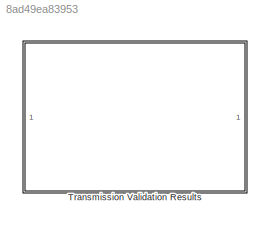
MODEL slx_8ad49ea83953
KIND library
CONFIG AbsTol = auto
CONFIG EnableMultiTasking = off
CONFIG FixedStep = auto
CONFIG MaxStep = auto
CONFIG MinStep = auto
CONFIG RelTol = 1e-3
CONFIG SampleTimeConstraint = Unconstrained
CONFIG Solver = VariableStepAuto
CONFIG SolverName = VariableStepAuto
CONFIG StartTime = 0.0
CONFIG StopTime = 10.0
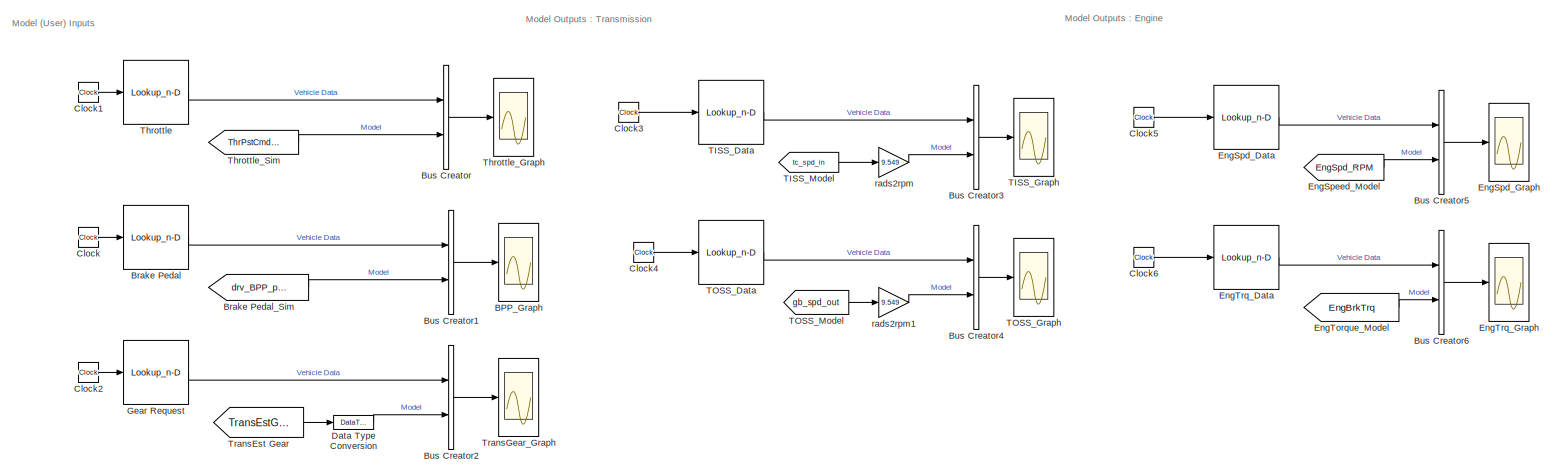
[diagram: Transmission Validation Results - part 1/2, most of the canvas]
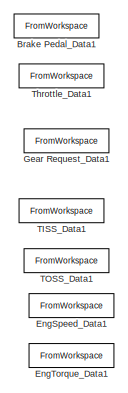
[diagram: Transmission Validation Results - part 2/2, middle left region]
BLOCK [SubSystem] Transmission Validation Results
  Ports = []
  RequestExecContextInheritance = off
  Variant = off
BLOCK [Scope] Transmission Validation Results/BPP_Graph
  NumInputPorts = 1
  Ports = [1]
  ScopeSpecificationString = Simulink.scopes.TimeScopeBlockCfg('CurrentConfiguration', extmgr.ConfigurationSet(extmgr.Configuration('Core','General UI',true),extmgr.Configuration('Core','Source UI',true),extmgr.Configuration('Sources','WiredSimulink',true,'DataLoggingVariableName','ScopeData2'),extmgr.Configuration('Visuals','Time Domain',true,'SerializedDisplays',{struct('MinYLimReal','-0.93886','MaxYLimReal','73.73362','YLa...<+1455ch>
BLOCK [Lookup_n-D] Transmission Validation Results/Brake Pedal
  BreakpointsForDimension1 = Time_Data
  InternalRulePriority = Speed
  NumberOfTableDimensions = 1
  Ports = [1, 1]
  RndMeth = Simplest
  Table = BrkPdlPos_Data
BLOCK [FromWorkspace] Transmission Validation Results/Brake Pedal_Data1
  Commented = on
  OutDataTypeStr = double
  SampleTime = 0
  VariableName = BrkPdlPos
  ZeroCross = on
BLOCK [From] Transmission Validation Results/Brake Pedal_Sim
  GotoTag = drv_BPP_percent
  TagVisibility = global
BLOCK [BusCreator] Transmission Validation Results/Bus Creator
  DisplayOption = bar
  InheritFromInputs = on
  Inputs = 2
  Ports = [2, 1]
BLOCK [BusCreator] Transmission Validation Results/Bus Creator1
  DisplayOption = bar
  InheritFromInputs = on
  Inputs = 2
  Ports = [2, 1]
BLOCK [BusCreator] Transmission Validation Results/Bus Creator2
  DisplayOption = bar
  InheritFromInputs = on
  Inputs = 2
  Ports = [2, 1]
BLOCK [BusCreator] Transmission Validation Results/Bus Creator3
  DisplayOption = bar
  InheritFromInputs = on
  Inputs = 2
  Ports = [2, 1]
BLOCK [BusCreator] Transmission Validation Results/Bus Creator4
  DisplayOption = bar
  InheritFromInputs = on
  Inputs = 2
  Ports = [2, 1]
BLOCK [BusCreator] Transmission Validation Results/Bus Creator5
  DisplayOption = bar
  InheritFromInputs = on
  Inputs = 2
  Ports = [2, 1]
BLOCK [BusCreator] Transmission Validation Results/Bus Creator6
  DisplayOption = bar
  InheritFromInputs = on
  Inputs = 2
  Ports = [2, 1]
BLOCK [Clock] Transmission Validation Results/Clock
BLOCK [Clock] Transmission Validation Results/Clock1
BLOCK [Clock] Transmission Validation Results/Clock2
BLOCK [Clock] Transmission Validation Results/Clock3
BLOCK [Clock] Transmission Validation Results/Clock4
BLOCK [Clock] Transmission Validation Results/Clock5
BLOCK [Clock] Transmission Validation Results/Clock6
BLOCK [DataTypeConversion] Transmission Validation Results/Data Type Conversion
  OutDataTypeStr = double
  RndMeth = Floor
  SaturateOnIntegerOverflow = off
BLOCK [Lookup_n-D] Transmission Validation Results/EngSpd_Data
  BreakpointsForDimension1 = Time_Data
  InternalRulePriority = Speed
  NumberOfTableDimensions = 1
  Ports = [1, 1]
  RndMeth = Simplest
  Table = EngSpd_Data
BLOCK [Scope] Transmission Validation Results/EngSpd_Graph
  NumInputPorts = 1
  Ports = [1]
  ScopeSpecificationString = Simulink.scopes.TimeScopeBlockCfg('CurrentConfiguration', extmgr.ConfigurationSet(extmgr.Configuration('Core','General UI',true),extmgr.Configuration('Core','Source UI',true),extmgr.Configuration('Sources','WiredSimulink',true,'DataLoggingVariableName','ScopeData6'),extmgr.Configuration('Visuals','Time Domain',true,'SerializedDisplays',{struct('MinYLimReal','-838.49081','MaxYLimReal','7546.41731',...<+1469ch>
BLOCK [FromWorkspace] Transmission Validation Results/EngSpeed_Data1
  Commented = on
  SampleTime = 0
  VariableName = EngSpd
  ZeroCross = on
BLOCK [From] Transmission Validation Results/EngSpeed_Model
  GotoTag = EngSpd_RPM
  TagVisibility = global
BLOCK [FromWorkspace] Transmission Validation Results/EngTorque_Data1
  Commented = on
  SampleTime = 0
  VariableName = EngActStdyStTorq
  ZeroCross = on
BLOCK [From] Transmission Validation Results/EngTorque_Model
  GotoTag = EngBrkTrq
  TagVisibility = global
BLOCK [Lookup_n-D] Transmission Validation Results/EngTrq_Data
  BreakpointsForDimension1 = Time_Data
  InternalRulePriority = Speed
  NumberOfTableDimensions = 1
  Ports = [1, 1]
  RndMeth = Simplest
  Table = EngActStdyStTorq_Da
BLOCK [Scope] Transmission Validation Results/EngTrq_Graph
  NumInputPorts = 1
  Ports = [1]
  ScopeSpecificationString = Simulink.scopes.TimeScopeBlockCfg('CurrentConfiguration', extmgr.ConfigurationSet(extmgr.Configuration('Core','General UI',true),extmgr.Configuration('Core','Source UI',true),extmgr.Configuration('Sources','WiredSimulink',true,'DataLoggingVariableName','ScopeData7'),extmgr.Configuration('Visuals','Time Domain',true,'SerializedDisplays',{struct('MinYLimReal','-70.66889','MaxYLimReal','251.75376','Y...<+1463ch>
BLOCK [Lookup_n-D] Transmission Validation Results/Gear Request
  BreakpointsForDimension1 = Time_Data
  InternalRulePriority = Speed
  NumberOfTableDimensions = 1
  Ports = [1, 1]
  RndMeth = Simplest
  Table = TransEstGear_Data
BLOCK [FromWorkspace] Transmission Validation Results/Gear Request_Data1
  Commented = on
  SampleTime = 0
  VariableName = TransEstGear
  ZeroCross = on
BLOCK [Lookup_n-D] Transmission Validation Results/TISS_Data
  BreakpointsForDimension1 = Time_Data
  InternalRulePriority = Speed
  NumberOfTableDimensions = 1
  Ports = [1, 1]
  RndMeth = Simplest
  Table = TrnTrbAngVl_Data
BLOCK [FromWorkspace] Transmission Validation Results/TISS_Data1
  Commented = on
  SampleTime = 0
  VariableName = TrnTrbAngVl_Data
  ZeroCross = on
BLOCK [Scope] Transmission Validation Results/TISS_Graph
  NumInputPorts = 1
  Ports = [1]
  ScopeSpecificationString = Simulink.scopes.TimeScopeBlockCfg('CurrentConfiguration', extmgr.ConfigurationSet(extmgr.Configuration('Core','General UI',true),extmgr.Configuration('Core','Source UI',true),extmgr.Configuration('Sources','WiredSimulink',true,'DataLoggingVariableName','ScopeData4'),extmgr.Configuration('Visuals','Time Domain',true,'SerializedDisplays',{struct('MinYLimReal','-762.80024','MaxYLimReal','6865.20214',...<+1468ch>
BLOCK [From] Transmission Validation Results/TISS_Model
  GotoTag = tc_spd_in
  TagVisibility = global
BLOCK [Lookup_n-D] Transmission Validation Results/TOSS_Data
  BreakpointsForDimension1 = Time_Data
  InternalRulePriority = Speed
  NumberOfTableDimensions = 1
  Ports = [1, 1]
  RndMeth = Simplest
  Table = TrnsOutShftAngVel_D
BLOCK [FromWorkspace] Transmission Validation Results/TOSS_Data1
  Commented = on
  SampleTime = 0
  VariableName = TrnsOutShftAngVel
  ZeroCross = on
BLOCK [Scope] Transmission Validation Results/TOSS_Graph
  NumInputPorts = 1
  Ports = [1]
  ScopeSpecificationString = Simulink.scopes.TimeScopeBlockCfg('CurrentConfiguration', extmgr.ConfigurationSet(extmgr.Configuration('Core','General UI',true),extmgr.Configuration('Core','Source UI',true),extmgr.Configuration('Sources','WiredSimulink',true,'DataLoggingVariableName','ScopeData5'),extmgr.Configuration('Visuals','Time Domain',true,'SerializedDisplays',{struct('MinYLimReal','-320.82351','MaxYLimReal','2887.41159',...<+1449ch>
BLOCK [From] Transmission Validation Results/TOSS_Model
  GotoTag = gb_spd_out
  TagVisibility = global
BLOCK [Lookup_n-D] Transmission Validation Results/Throttle
  BreakpointsForDimension1 = Time_Data
  InternalRulePriority = Speed
  NumberOfTableDimensions = 1
  Ports = [1, 1]
  RndMeth = Simplest
  Table = ThrPos_Data
BLOCK [FromWorkspace] Transmission Validation Results/Throttle_Data1
  Commented = on
  SampleTime = 0
  VariableName = ThrPos
  ZeroCross = on
BLOCK [Scope] Transmission Validation Results/Throttle_Graph
  NumInputPorts = 1
  Ports = [1]
  ScopeSpecificationString = Simulink.scopes.TimeScopeBlockCfg('CurrentConfiguration', extmgr.ConfigurationSet(extmgr.Configuration('Core','General UI',true),extmgr.Configuration('Core','Source UI',true),extmgr.Configuration('Sources','WiredSimulink',true,'DataLoggingVariableName','ScopeData1'),extmgr.Configuration('Visuals','Time Domain',true,'SerializedDisplays',{struct('MinYLimReal','-12.45098','MaxYLimReal','112.05886','Y...<+1442ch>
BLOCK [From] Transmission Validation Results/Throttle_Sim
  GotoTag = ThrPstCmd_pct
  TagVisibility = global
BLOCK [From] Transmission Validation Results/TransEst Gear
  GotoTag = TransEstGear
  TagVisibility = global
BLOCK [Scope] Transmission Validation Results/TransGear_Graph
  NumInputPorts = 1
  Ports = [1]
  ScopeSpecificationString = Simulink.scopes.TimeScopeBlockCfg('CurrentConfiguration', extmgr.ConfigurationSet(extmgr.Configuration('Core','General UI',true,'FigureColor',[0 0 0]),extmgr.Configuration('Core','Source UI',true),extmgr.Configuration('Sources','WiredSimulink',true,'DataLoggingVariableName','ScopeData3'),extmgr.Configuration('Visuals','Time Domain',true,'SerializedDisplays',{struct('MinYLimReal','0.88715','MaxYLim...<+2016ch>
BLOCK [Gain] Transmission Validation Results/rads2rpm
  Gain = 9.549
  OutDataTypeStr = Inherit: Inherit via internal rule
  ParamDataTypeStr = Inherit: Inherit via internal rule
  SaturateOnIntegerOverflow = off
BLOCK [Gain] Transmission Validation Results/rads2rpm1
  Gain = 9.549
  OutDataTypeStr = Inherit: Inherit via internal rule
  ParamDataTypeStr = Inherit: Inherit via internal rule
  SaturateOnIntegerOverflow = off
ANNOTATION Transmission Validation Results: Model (User) Inputs
ANNOTATION Transmission Validation Results: Model Outputs : Engine
ANNOTATION Transmission Validation Results: Model Outputs : Transmission
LINE Transmission Validation Results/Brake Pedal:1 -> Transmission Validation Results/Bus Creator1:1
LINE Transmission Validation Results/Brake Pedal_Sim:1 -> Transmission Validation Results/Bus Creator1:2
LINE Transmission Validation Results/Bus Creator1:1 -> Transmission Validation Results/BPP_Graph:1
LINE Transmission Validation Results/Bus Creator2:1 -> Transmission Validation Results/TransGear_Graph:1
LINE Transmission Validation Results/Bus Creator3:1 -> Transmission Validation Results/TISS_Graph:1
LINE Transmission Validation Results/Bus Creator4:1 -> Transmission Validation Results/TOSS_Graph:1
LINE Transmission Validation Results/Bus Creator5:1 -> Transmission Validation Results/EngSpd_Graph:1
LINE Transmission Validation Results/Bus Creator6:1 -> Transmission Validation Results/EngTrq_Graph:1
LINE Transmission Validation Results/Bus Creator:1 -> Transmission Validation Results/Throttle_Graph:1
LINE Transmission Validation Results/Clock1:1 -> Transmission Validation Results/Throttle:1
LINE Transmission Validation Results/Clock2:1 -> Transmission Validation Results/Gear Request:1
LINE Transmission Validation Results/Clock3:1 -> Transmission Validation Results/TISS_Data:1
LINE Transmission Validation Results/Clock4:1 -> Transmission Validation Results/TOSS_Data:1
LINE Transmission Validation Results/Clock5:1 -> Transmission Validation Results/EngSpd_Data:1
LINE Transmission Validation Results/Clock6:1 -> Transmission Validation Results/EngTrq_Data:1
LINE Transmission Validation Results/Clock:1 -> Transmission Validation Results/Brake Pedal:1
LINE Transmission Validation Results/Data Type Conversion:1 -> Transmission Validation Results/Bus Creator2:2
LINE Transmission Validation Results/EngSpd_Data:1 -> Transmission Validation Results/Bus Creator5:1
LINE Transmission Validation Results/EngSpeed_Model:1 -> Transmission Validation Results/Bus Creator5:2
LINE Transmission Validation Results/EngTorque_Model:1 -> Transmission Validation Results/Bus Creator6:2
LINE Transmission Validation Results/EngTrq_Data:1 -> Transmission Validation Results/Bus Creator6:1
LINE Transmission Validation Results/Gear Request:1 -> Transmission Validation Results/Bus Creator2:1
LINE Transmission Validation Results/TISS_Data:1 -> Transmission Validation Results/Bus Creator3:1
LINE Transmission Validation Results/TISS_Model:1 -> Transmission Validation Results/rads2rpm:1
LINE Transmission Validation Results/TOSS_Data:1 -> Transmission Validation Results/Bus Creator4:1
LINE Transmission Validation Results/TOSS_Model:1 -> Transmission Validation Results/rads2rpm1:1
LINE Transmission Validation Results/Throttle:1 -> Transmission Validation Results/Bus Creator:1
LINE Transmission Validation Results/Throttle_Sim:1 -> Transmission Validation Results/Bus Creator:2
LINE Transmission Validation Results/TransEst Gear:1 -> Transmission Validation Results/Data Type Conversion:1
LINE Transmission Validation Results/rads2rpm1:1 -> Transmission Validation Results/Bus Creator4:2
LINE Transmission Validation Results/rads2rpm:1 -> Transmission Validation Results/Bus Creator3:2
